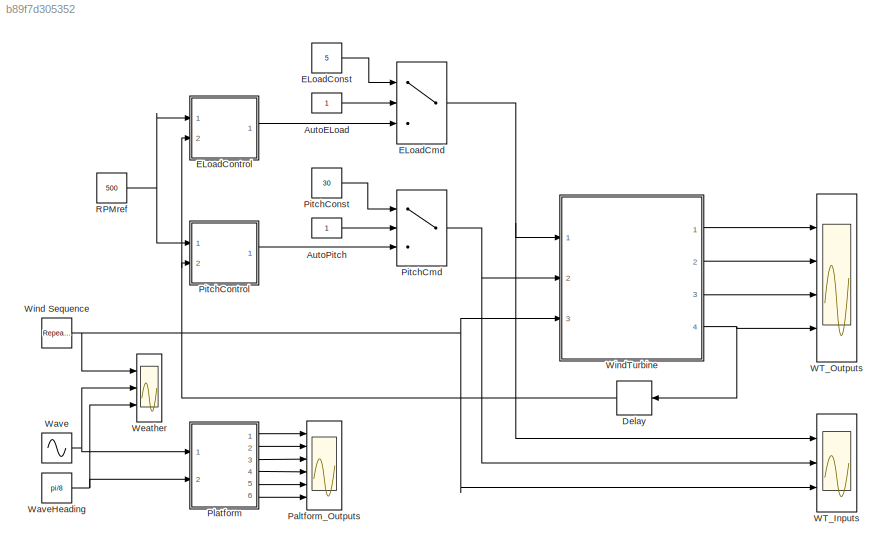
MODEL slx_b89f7d305352
KIND model
CONFIG AbsTol = auto
CONFIG EnableMultiTasking = off
CONFIG FixedStep = auto
CONFIG MaxStep = auto
CONFIG MinStep = auto
CONFIG RelTol = 1e-3
CONFIG SampleTimeConstraint = Unconstrained
CONFIG SolverName = ode5
CONFIG StartTime = 0.0
CONFIG StopTime = 200
WORKSPACE source: mxarray member
WORKSPACE autoELoad = 0
WORKSPACE autoPitch = 0
WORKSPACE eLoad = 0
WORKSPACE pitch = 0
BLOCK [Constant] AutoELoad
BLOCK [Constant] AutoPitch
  VectorParams1D = off
BLOCK [Delay] Delay
  DelayLength = 1
  InputPortMap = u0
  Ports = [1, 1]
BLOCK [Switch] ELoadCmd
  Criteria = u2 > Threshold
  InputSameDT = off
  SaturateOnIntegerOverflow = off
BLOCK [Constant] ELoadConst
  Value = 5
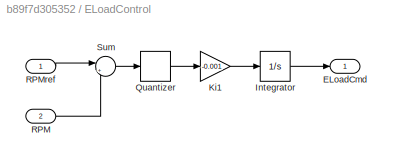
BLOCK [SubSystem] ELoadControl
  Ports = [2, 1]
  RequestExecContextInheritance = off
BLOCK [Outport] ELoadControl/ELoadCmd
BLOCK [Integrator] ELoadControl/Integrator
  LimitOutput = on
  LowerSaturationLimit = 0
  Ports = [1, 1]
  UpperSaturationLimit = 15
BLOCK [Gain] ELoadControl/Ki1
  Gain = -0.001
BLOCK [Quantizer] ELoadControl/Quantizer
  QuantizationInterval = 50
BLOCK [Inport] ELoadControl/RPM
  Port = 2
BLOCK [Inport] ELoadControl/RPMref
BLOCK [Sum] ELoadControl/Sum
  Inputs = |+-
  Ports = [2, 1]
BLOCK [Scope] Paltform_Outputs
  Floating = off
  NumInputPorts = 6
  Ports = [6]
  ScopeSpecificationString = Simulink.scopes.TimeScopeBlockCfg('CurrentConfiguration', extmgr.ConfigurationSet(extmgr.Configuration('Core','General UI',true),extmgr.Configuration('Core','Source UI',true),extmgr.Configuration('Sources','WiredSimulink',true,'DataLogging',true,'DataLoggingSaveFormat','StructureWithTime','DataLoggingDecimation','1','DataLoggingDecimateData',true),extmgr.Configuration('Visuals','Time Domain',true,...<+5127ch>
BLOCK [Switch] PitchCmd
  Criteria = u2 > Threshold
  InputSameDT = off
  SaturateOnIntegerOverflow = off
BLOCK [Constant] PitchConst
  Value = 30
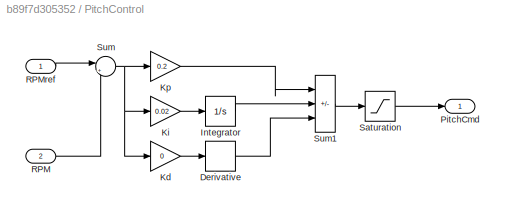
BLOCK [SubSystem] PitchControl
  Ports = [2, 1]
  RequestExecContextInheritance = off
BLOCK [Derivative] PitchControl/Derivative
BLOCK [Integrator] PitchControl/Integrator
  InitialCondition = 10
  LimitOutput = on
  LowerSaturationLimit = -45
  Ports = [1, 1]
  UpperSaturationLimit = 45
BLOCK [Gain] PitchControl/Kd
  Gain = 0
BLOCK [Gain] PitchControl/Ki
  Gain = 0.02
BLOCK [Gain] PitchControl/Kp
  Gain = 0.2
BLOCK [Outport] PitchControl/PitchCmd
BLOCK [Inport] PitchControl/RPM
  Port = 2
BLOCK [Inport] PitchControl/RPMref
BLOCK [Saturate] PitchControl/Saturation
  LowerLimit = 0
  UpperLimit = 45
BLOCK [Sum] PitchControl/Sum
  Inputs = |+-
  Ports = [2, 1]
BLOCK [Sum] PitchControl/Sum1
  IconShape = rectangular
  Inputs = |++-
  Ports = [3, 1]
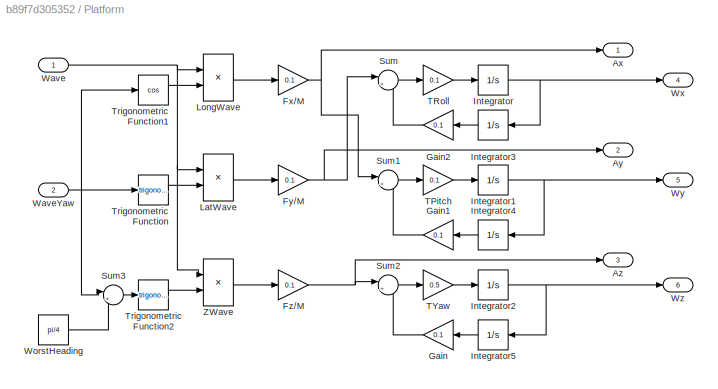
BLOCK [SubSystem] Platform
  Ports = [2, 6]
  RequestExecContextInheritance = off
  TreatAsAtomicUnit = on
BLOCK [Outport] Platform/Ax
BLOCK [Outport] Platform/Ay
  Port = 2
BLOCK [Outport] Platform/Az
  Port = 3
BLOCK [Gain] Platform/Fx//M
  Gain = 0.1
BLOCK [Gain] Platform/Fy//M
  Gain = 0.1
BLOCK [Gain] Platform/Fz//M
  Gain = 0.1
BLOCK [Gain] Platform/Gain
  Gain = 0.1
BLOCK [Gain] Platform/Gain1
  Gain = 0.1
BLOCK [Gain] Platform/Gain2
  Gain = 0.1
BLOCK [Integrator] Platform/Integrator
  LowerSaturationLimit = -45
  Ports = [1, 1]
  UpperSaturationLimit = 1
BLOCK [Integrator] Platform/Integrator1
  LowerSaturationLimit = -45
  Ports = [1, 1]
  UpperSaturationLimit = 1
BLOCK [Integrator] Platform/Integrator2
  LowerSaturationLimit = -45
  Ports = [1, 1]
  UpperSaturationLimit = 1
BLOCK [Integrator] Platform/Integrator3
  Ports = [1, 1]
BLOCK [Integrator] Platform/Integrator4
  Ports = [1, 1]
BLOCK [Integrator] Platform/Integrator5
  Ports = [1, 1]
BLOCK [Product] Platform/LatWave
  Ports = [2, 1]
BLOCK [Product] Platform/LongWave
  Ports = [2, 1]
BLOCK [Sum] Platform/Sum
  Inputs = |+-
  Ports = [2, 1]
BLOCK [Sum] Platform/Sum1
  Inputs = |+-
  Ports = [2, 1]
BLOCK [Sum] Platform/Sum2
  Inputs = |+-
  Ports = [2, 1]
BLOCK [Sum] Platform/Sum3
  Inputs = |+-
  Ports = [2, 1]
BLOCK [Gain] Platform/TPitch
  Gain = 0.1
BLOCK [Gain] Platform/TRoll
  Gain = 0.1
BLOCK [Gain] Platform/TYaw
  Gain = 0.5
BLOCK [Trigonometry] Platform/Trigonometric Function
  Ports = [1, 1]
BLOCK [Trigonometry] Platform/Trigonometric Function1
  Operator = cos
  Ports = [1, 1]
BLOCK [Trigonometry] Platform/Trigonometric Function2
  Ports = [1, 1]
BLOCK [Inport] Platform/Wave
BLOCK [Inport] Platform/WaveYaw
  Port = 2
BLOCK [Constant] Platform/WorstHeading
  Value = pi/4
BLOCK [Outport] Platform/Wx
  Port = 4
BLOCK [Outport] Platform/Wy
  Port = 5
BLOCK [Outport] Platform/Wz
  Port = 6
BLOCK [Product] Platform/ZWave
  Ports = [2, 1]
BLOCK [Constant] RPMref
  Value = 500
BLOCK [Scope] WT_Inputs
  Floating = off
  NumInputPorts = 3
  Ports = [3]
  ScopeSpecificationString = Simulink.scopes.TimeScopeBlockCfg('CurrentConfiguration', extmgr.ConfigurationSet(extmgr.Configuration('Core','General UI',true),extmgr.Configuration('Core','Source UI',true),extmgr.Configuration('Sources','WiredSimulink',true,'DataLogging',true,'DataLoggingSaveFormat','StructureWithTime','DataLoggingDecimation','1','DataLoggingDecimateData',true,'DataLoggingVariableName','ScopeData2'),extmgr.Conf...<+2996ch>
BLOCK [Scope] WT_Outputs
  Floating = off
  NumInputPorts = 4
  Ports = [4]
  ScopeSpecificationString = Simulink.scopes.TimeScopeBlockCfg('CurrentConfiguration', extmgr.ConfigurationSet(extmgr.Configuration('Core','General UI',true),extmgr.Configuration('Core','Source UI',true),extmgr.Configuration('Sources','WiredSimulink',true,'DataLogging',true,'DataLoggingSaveFormat','StructureWithTime','DataLoggingDecimation','1','DataLoggingDecimateData',true,'DataLoggingVariableName','ScopeData1'),extmgr.Conf...<+3810ch>
BLOCK [Sin] Wave
  Frequency = 2*pi/6
  NameLocation = top
  Ports = [0, 1]
  SampleTime = 0
BLOCK [Constant] WaveHeading
  Value = pi/8
BLOCK [Scope] Weather
  Floating = off
  NumInputPorts = 3
  Ports = [3]
  ScopeSpecificationString = Simulink.scopes.TimeScopeBlockCfg('CurrentConfiguration', extmgr.ConfigurationSet(extmgr.Configuration('Core','General UI',true),extmgr.Configuration('Core','Source UI',true),extmgr.Configuration('Sources','WiredSimulink',true,'DataLogging',true,'DataLoggingSaveFormat','StructureWithTime','DataLoggingDecimation','1','DataLoggingDecimateData',true,'DataLoggingVariableName','ScopeData3'),extmgr.Conf...<+2987ch>
BLOCK [Reference] Wind Sequence  REF=simulink/Sources/Repeating
Sequence
Stair
  Ports = [0, 1]
  SourceBlock = simulink/Sources/Repeating\nSequence\nStair
  SourceProductBaseCode = SL
  SourceType = Repeating Sequence Stair
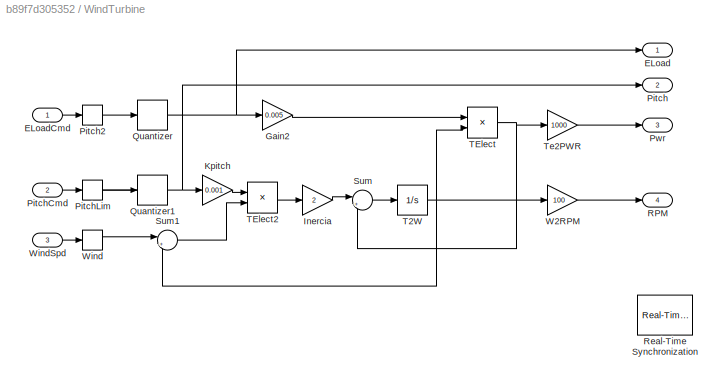
BLOCK [SubSystem] WindTurbine
  Ports = [3, 4]
  RequestExecContextInheritance = off
  TreatAsAtomicUnit = on
BLOCK [Outport] WindTurbine/ELoad
BLOCK [Inport] WindTurbine/ELoadCmd
BLOCK [Gain] WindTurbine/Gain2
  Gain = 0.005
BLOCK [Gain] WindTurbine/Inercia
  Gain = 2
BLOCK [Gain] WindTurbine/Kpitch
  Gain = 0.001
BLOCK [Outport] WindTurbine/Pitch
  Port = 2
BLOCK [RateLimiter] WindTurbine/Pitch2
  FallingSlewLimit = -0.2
  RisingSlewLimit = 0.2
BLOCK [Inport] WindTurbine/PitchCmd
  Port = 2
BLOCK [RateLimiter] WindTurbine/PitchLim
  FallingSlewLimit = -2
  RisingSlewLimit = 2
BLOCK [Outport] WindTurbine/Pwr
  Port = 3
BLOCK [Quantizer] WindTurbine/Quantizer
  QuantizationInterval = 1
BLOCK [Quantizer] WindTurbine/Quantizer1
  QuantizationInterval = 1
BLOCK [Outport] WindTurbine/RPM
  Port = 4
BLOCK [Reference] WindTurbine/Real-Time Synchronization  REF=sldrtlib/Real-Time
Synchronization
  Ports = []
  SourceBlock = sldrtlib/Real-Time\nSynchronization
  SourceProductBaseCode = WT
  SourceType = Simulink Desktop Real-Time Synchronization
BLOCK [Sum] WindTurbine/Sum
  Inputs = |+-
  Ports = [2, 1]
BLOCK [Sum] WindTurbine/Sum1
  Inputs = |+-
  Ports = [2, 1]
BLOCK [Integrator] WindTurbine/T2W
  Ports = [1, 1]
BLOCK [Product] WindTurbine/TElect
  Ports = [2, 1]
BLOCK [Product] WindTurbine/TElect2
  Ports = [2, 1]
BLOCK [Gain] WindTurbine/Te2PWR
  Gain = 1000
BLOCK [Gain] WindTurbine/W2RPM
  Gain = 100
BLOCK [RateLimiter] WindTurbine/Wind
BLOCK [Inport] WindTurbine/WindSpd
  Port = 3
LINE AutoELoad:1 -> ELoadCmd:2
LINE AutoPitch:1 -> PitchCmd:2
NET Delay:1 -> ELoadControl:2, PitchControl:2
NET ELoadCmd:1 -> WT_Inputs:1, WindTurbine:1
LINE ELoadConst:1 -> ELoadCmd:1
LINE ELoadControl/Integrator:1 -> ELoadControl/ELoadCmd:1
LINE ELoadControl/Ki1:1 -> ELoadControl/Integrator:1
LINE ELoadControl/Quantizer:1 -> ELoadControl/Ki1:1
LINE ELoadControl/RPM:1 -> ELoadControl/Sum:2
LINE ELoadControl/RPMref:1 -> ELoadControl/Sum:1
LINE ELoadControl/Sum:1 -> ELoadControl/Quantizer:1
LINE ELoadControl:1 -> ELoadCmd:3
NET PitchCmd:1 -> WT_Inputs:2, WindTurbine:2
LINE PitchConst:1 -> PitchCmd:1
LINE PitchControl/Derivative:1 -> PitchControl/Sum1:3
LINE PitchControl/Integrator:1 -> PitchControl/Sum1:2
LINE PitchControl/Kd:1 -> PitchControl/Derivative:1
LINE PitchControl/Ki:1 -> PitchControl/Integrator:1
LINE PitchControl/Kp:1 -> PitchControl/Sum1:1
LINE PitchControl/RPM:1 -> PitchControl/Sum:2
LINE PitchControl/RPMref:1 -> PitchControl/Sum:1
LINE PitchControl/Saturation:1 -> PitchControl/PitchCmd:1
LINE PitchControl/Sum1:1 -> PitchControl/Saturation:1
NET PitchControl/Sum:1 -> PitchControl/Kd:1, PitchControl/Ki:1, PitchControl/Kp:1
LINE PitchControl:1 -> PitchCmd:3
NET Platform/Fx//M:1 -> Platform/Ax:1, Platform/Sum1:1
NET Platform/Fy//M:1 -> Platform/Ay:1, Platform/Sum:1
NET Platform/Fz//M:1 -> Platform/Az:1, Platform/Sum2:1
LINE Platform/Gain1:1 -> Platform/Sum1:2
LINE Platform/Gain2:1 -> Platform/Sum:2
LINE Platform/Gain:1 -> Platform/Sum2:2
NET Platform/Integrator1:1 -> Platform/Integrator4:1, Platform/Wy:1
NET Platform/Integrator2:1 -> Platform/Integrator5:1, Platform/Wz:1
LINE Platform/Integrator3:1 -> Platform/Gain2:1
LINE Platform/Integrator4:1 -> Platform/Gain1:1
LINE Platform/Integrator5:1 -> Platform/Gain:1
NET Platform/Integrator:1 -> Platform/Integrator3:1, Platform/Wx:1
LINE Platform/LatWave:1 -> Platform/Fy//M:1
LINE Platform/LongWave:1 -> Platform/Fx//M:1
LINE Platform/Sum1:1 -> Platform/TPitch:1
LINE Platform/Sum2:1 -> Platform/TYaw:1
LINE Platform/Sum3:1 -> Platform/Trigonometric Function2:1
LINE Platform/Sum:1 -> Platform/TRoll:1
LINE Platform/TPitch:1 -> Platform/Integrator1:1
LINE Platform/TRoll:1 -> Platform/Integrator:1
LINE Platform/TYaw:1 -> Platform/Integrator2:1
LINE Platform/Trigonometric Function1:1 -> Platform/LongWave:2
LINE Platform/Trigonometric Function2:1 -> Platform/ZWave:2
LINE Platform/Trigonometric Function:1 -> Platform/LatWave:2
NET Platform/Wave:1 -> Platform/LatWave:1, Platform/LongWave:1, Platform/ZWave:1
NET Platform/WaveYaw:1 -> Platform/Sum3:1, Platform/Trigonometric Function1:1, Platform/Trigonometric Function:1
LINE Platform/WorstHeading:1 -> Platform/Sum3:2
LINE Platform/ZWave:1 -> Platform/Fz//M:1
LINE Platform:1 -> Paltform_Outputs:1
LINE Platform:2 -> Paltform_Outputs:2
LINE Platform:3 -> Paltform_Outputs:3
LINE Platform:4 -> Paltform_Outputs:4
LINE Platform:5 -> Paltform_Outputs:5
LINE Platform:6 -> Paltform_Outputs:6
NET RPMref:1 -> ELoadControl:1, PitchControl:1
NET Wave:1 -> Platform:1, Weather:2
NET WaveHeading:1 -> Platform:2, Weather:3
NET Wind Sequence:1 -> WT_Inputs:3, Weather:1, WindTurbine:3
LINE WindTurbine/ELoadCmd:1 -> WindTurbine/Pitch2:1
LINE WindTurbine/Gain2:1 -> WindTurbine/TElect:1
LINE WindTurbine/Inercia:1 -> WindTurbine/Sum:1
LINE WindTurbine/Kpitch:1 -> WindTurbine/TElect2:1
LINE WindTurbine/Pitch2:1 -> WindTurbine/Quantizer:1
LINE WindTurbine/PitchCmd:1 -> WindTurbine/PitchLim:1
LINE WindTurbine/PitchLim:1 -> WindTurbine/Quantizer1:1
NET WindTurbine/Quantizer1:1 -> WindTurbine/Kpitch:1, WindTurbine/Pitch:1
NET WindTurbine/Quantizer:1 -> WindTurbine/ELoad:1, WindTurbine/Gain2:1
LINE WindTurbine/Sum1:1 -> WindTurbine/TElect2:2
LINE WindTurbine/Sum:1 -> WindTurbine/T2W:1
NET WindTurbine/T2W:1 -> WindTurbine/Sum1:2, WindTurbine/TElect:2, WindTurbine/W2RPM:1
LINE WindTurbine/TElect2:1 -> WindTurbine/Inercia:1
NET WindTurbine/TElect:1 -> WindTurbine/Sum:2, WindTurbine/Te2PWR:1
LINE WindTurbine/Te2PWR:1 -> WindTurbine/Pwr:1
LINE WindTurbine/W2RPM:1 -> WindTurbine/RPM:1
LINE WindTurbine/Wind:1 -> WindTurbine/Sum1:1
LINE WindTurbine/WindSpd:1 -> WindTurbine/Wind:1
LINE WindTurbine:1 -> WT_Outputs:1
LINE WindTurbine:2 -> WT_Outputs:2
LINE WindTurbine:3 -> WT_Outputs:3
NET WindTurbine:4 -> Delay:1, WT_Outputs:4
note: NET lines group one-source signal fan-out (src -> all destinations, sorted); 1:1 wires keep LINE
